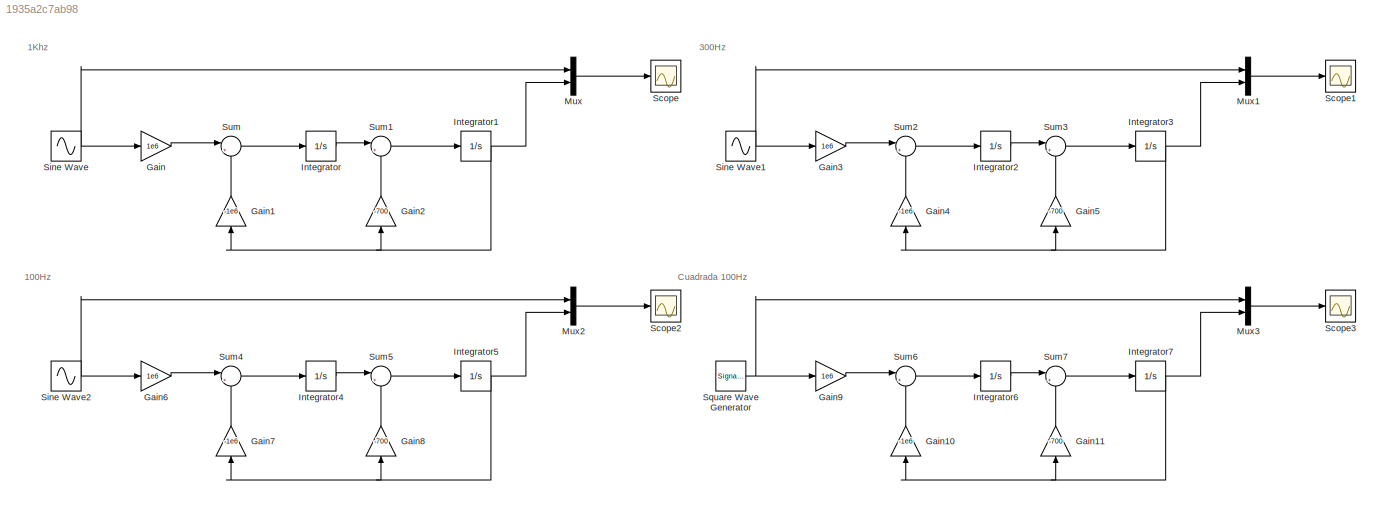
MODEL slx_1935a2c7ab98
KIND model
CONFIG AbsTol = auto
CONFIG EnableMultiTasking = off
CONFIG FixedStep = auto
CONFIG MaxStep = auto
CONFIG MinStep = auto
CONFIG RelTol = 1e-3
CONFIG SampleTimeConstraint = Unconstrained
CONFIG Solver = VariableStepAuto
CONFIG SolverName = VariableStepAuto
CONFIG StartTime = 0.0
CONFIG StopTime = 0.100
BLOCK [Gain] Gain
  Gain = 1e6
BLOCK [Gain] Gain1
  Gain = -1e6
  NameLocation = right
BLOCK [Gain] Gain10
  Gain = -1e6
  NameLocation = right
BLOCK [Gain] Gain11
  Gain = -700
  NameLocation = right
BLOCK [Gain] Gain2
  Gain = -700
  NameLocation = right
BLOCK [Gain] Gain3
  Gain = 1e6
BLOCK [Gain] Gain4
  Gain = -1e6
  NameLocation = right
BLOCK [Gain] Gain5
  Gain = -700
  NameLocation = right
BLOCK [Gain] Gain6
  Gain = 1e6
BLOCK [Gain] Gain7
  Gain = -1e6
  NameLocation = right
BLOCK [Gain] Gain8
  Gain = -700
  NameLocation = right
BLOCK [Gain] Gain9
  Gain = 1e6
BLOCK [Integrator] Integrator
  Ports = [1, 1]
BLOCK [Integrator] Integrator1
  Ports = [1, 1]
BLOCK [Integrator] Integrator2
  Ports = [1, 1]
BLOCK [Integrator] Integrator3
  Ports = [1, 1]
BLOCK [Integrator] Integrator4
  Ports = [1, 1]
BLOCK [Integrator] Integrator5
  Ports = [1, 1]
BLOCK [Integrator] Integrator6
  Ports = [1, 1]
BLOCK [Integrator] Integrator7
  Ports = [1, 1]
BLOCK [Mux] Mux
  DisplayOption = bar
  Inputs = 2
  Ports = [2, 1]
BLOCK [Mux] Mux1
  DisplayOption = bar
  Inputs = 2
  Ports = [2, 1]
BLOCK [Mux] Mux2
  DisplayOption = bar
  Inputs = 2
  Ports = [2, 1]
BLOCK [Mux] Mux3
  DisplayOption = bar
  Inputs = 2
  Ports = [2, 1]
BLOCK [Scope] Scope
  Floating = off
  NumInputPorts = 1
  Ports = [1]
  ScopeSpecificationString = Simulink.scopes.TimeScopeBlockCfg('CurrentConfiguration', extmgr.ConfigurationSet(extmgr.Configuration('Core','General UI',true),extmgr.Configuration('Core','Source UI',true),extmgr.Configuration('Sources','WiredSimulink',true,'DataLoggingVariableName','ScopeData4'),extmgr.Configuration('Visuals','Time Domain',true,'SerializedDisplays',{struct('MinYLimReal','-1.00959','MaxYLimReal','1.00702','YLab...<+1418ch>
BLOCK [Scope] Scope1
  Floating = off
  NumInputPorts = 1
  Ports = [1]
  ScopeSpecificationString = Simulink.scopes.TimeScopeBlockCfg('CurrentConfiguration', extmgr.ConfigurationSet(extmgr.Configuration('Core','General UI',true),extmgr.Configuration('Core','Source UI',true),extmgr.Configuration('Sources','WiredSimulink',true,'DataLoggingVariableName','ScopeData5'),extmgr.Configuration('Visuals','Time Domain',true,'SerializedDisplays',{struct('MinYLimReal','-1.24998','MaxYLimReal','1.24999','YLab...<+1418ch>
BLOCK [Scope] Scope2
  Floating = off
  NumInputPorts = 1
  Ports = [1]
  ScopeSpecificationString = Simulink.scopes.TimeScopeBlockCfg('CurrentConfiguration', extmgr.ConfigurationSet(extmgr.Configuration('Core','General UI',true),extmgr.Configuration('Core','Source UI',true),extmgr.Configuration('Sources','WiredSimulink',true,'DataLoggingVariableName','ScopeData6'),extmgr.Configuration('Visuals','Time Domain',true,'SerializedDisplays',{struct('MinYLimReal','-1.70149','MaxYLimReal','1.68095','YLab...<+1418ch>
BLOCK [Scope] Scope3
  Floating = off
  NumInputPorts = 1
  Ports = [1]
  ScopeSpecificationString = Simulink.scopes.TimeScopeBlockCfg('CurrentConfiguration', extmgr.ConfigurationSet(extmgr.Configuration('Core','General UI',true),extmgr.Configuration('Core','Source UI',true),extmgr.Configuration('Sources','WiredSimulink',true,'DataLoggingVariableName','ScopeData7'),extmgr.Configuration('Visuals','Time Domain',true,'SerializedDisplays',{struct('MinYLimReal','-2.0781','MaxYLimReal','2.06818','YLabe...<+1449ch>
BLOCK [Sin] Sine Wave
  Frequency = 2*pi*1e3
  Ports = [0, 1]
  SampleTime = 0.000001
BLOCK [Sin] Sine Wave1
  Frequency = 2*pi*300
  Ports = [0, 1]
  SampleTime = 0.000001
BLOCK [Sin] Sine Wave2
  Frequency = 2*pi*100
  Ports = [0, 1]
  SampleTime = 0.000001
BLOCK [SignalGenerator] Square Wave Generator
  Frequency = 100
  Ports = [0, 1]
  WaveForm = square
BLOCK [Sum] Sum
  Inputs = |++
  Ports = [2, 1]
BLOCK [Sum] Sum1
  Inputs = |++
  Ports = [2, 1]
BLOCK [Sum] Sum2
  Inputs = |++
  Ports = [2, 1]
BLOCK [Sum] Sum3
  Inputs = |++
  Ports = [2, 1]
BLOCK [Sum] Sum4
  Inputs = |++
  Ports = [2, 1]
BLOCK [Sum] Sum5
  Inputs = |++
  Ports = [2, 1]
BLOCK [Sum] Sum6
  Inputs = |++
  Ports = [2, 1]
BLOCK [Sum] Sum7
  Inputs = |++
  Ports = [2, 1]
ANNOTATION (root): 100Hz
ANNOTATION (root): 1Khz
ANNOTATION (root): 300Hz
ANNOTATION (root): Cuadrada 100Hz
LINE Gain10:1 -> Sum6:2
LINE Gain11:1 -> Sum7:2
LINE Gain1:1 -> Sum:2
LINE Gain2:1 -> Sum1:2
LINE Gain3:1 -> Sum2:1
LINE Gain4:1 -> Sum2:2
LINE Gain5:1 -> Sum3:2
LINE Gain6:1 -> Sum4:1
LINE Gain7:1 -> Sum4:2
LINE Gain8:1 -> Sum5:2
LINE Gain9:1 -> Sum6:1
LINE Gain:1 -> Sum:1
NET Integrator1:1 -> Gain1:1, Gain2:1, Mux:2
LINE Integrator2:1 -> Sum3:1
NET Integrator3:1 -> Gain4:1, Gain5:1, Mux1:2
LINE Integrator4:1 -> Sum5:1
NET Integrator5:1 -> Gain7:1, Gain8:1, Mux2:2
LINE Integrator6:1 -> Sum7:1
NET Integrator7:1 -> Gain10:1, Gain11:1, Mux3:2
LINE Integrator:1 -> Sum1:1
LINE Mux1:1 -> Scope1:1
LINE Mux2:1 -> Scope2:1
LINE Mux3:1 -> Scope3:1
LINE Mux:1 -> Scope:1
NET Sine Wave1:1 -> Gain3:1, Mux1:1
NET Sine Wave2:1 -> Gain6:1, Mux2:1
NET Sine Wave:1 -> Gain:1, Mux:1
NET Square Wave Generator:1 -> Gain9:1, Mux3:1
LINE Sum1:1 -> Integrator1:1
LINE Sum2:1 -> Integrator2:1
LINE Sum3:1 -> Integrator3:1
LINE Sum4:1 -> Integrator4:1
LINE Sum5:1 -> Integrator5:1
LINE Sum6:1 -> Integrator6:1
LINE Sum7:1 -> Integrator7:1
LINE Sum:1 -> Integrator:1
note: NET lines group one-source signal fan-out (src -> all destinations, sorted); 1:1 wires keep LINE
